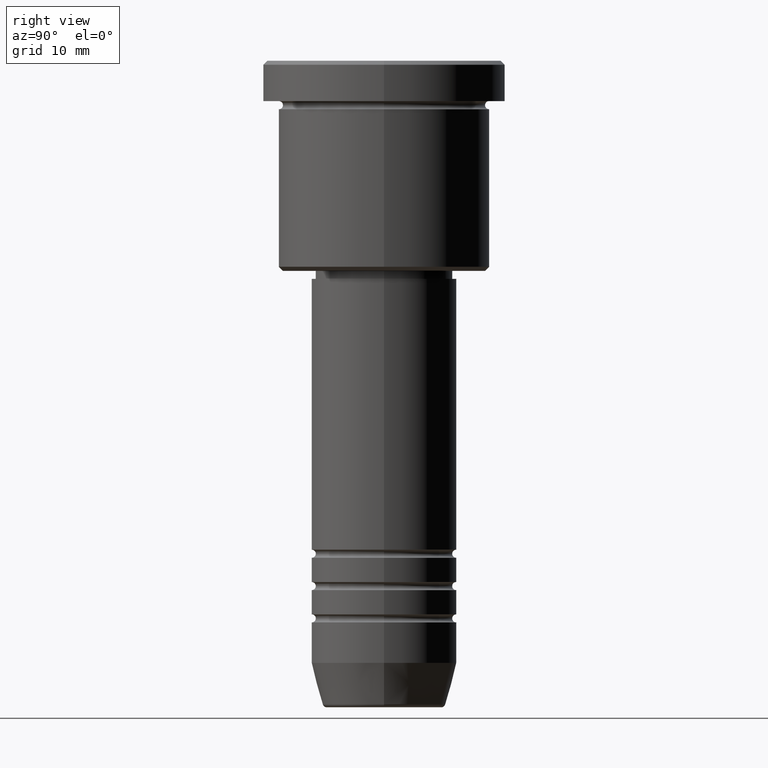
[diagram: clean part render]
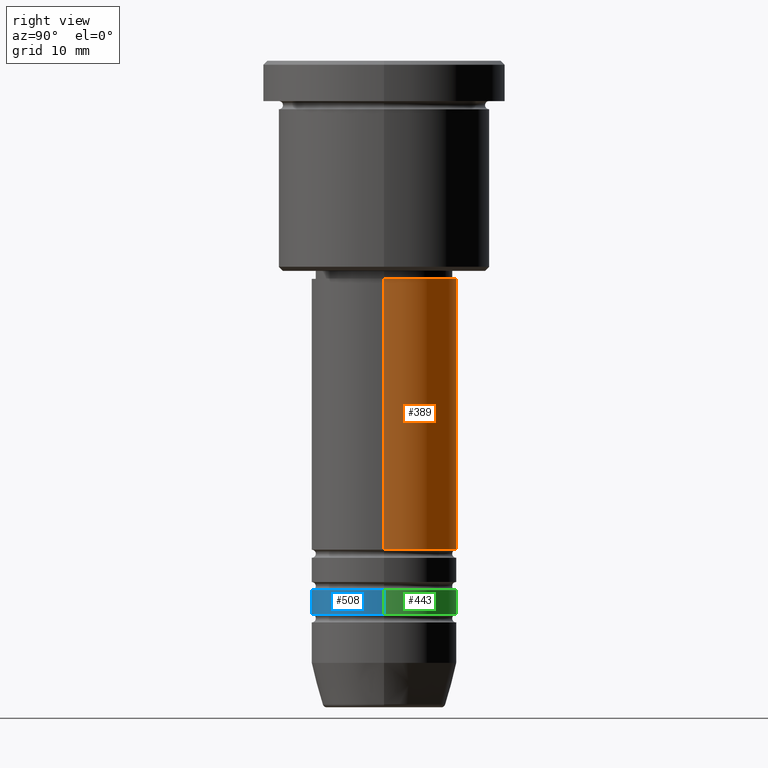
[diagram: same view with three faces highlighted in distinct colors, each labeled with its STEP entity id]
A machine part, right view with three faces highlighted in distinct colors.
Their STEP definitions:

[orange] entity #389 — the highlighted cylindrical surface (partial cylindrical patch) has radius 9 mm, axis along (-0, -0, 1).
#19 = DIRECTION ( 'NONE',  ( -0.000000000000000000, -0.000000000000000000, 1.000000000000000000 ) ) ;
#48 = EDGE_LOOP ( 'NONE', ( #188, #489, #1128, #1101 ) ) ;
#78 = EDGE_CURVE ( 'NONE', #132, #1081, #145, .T. ) ;
#92 = DIRECTION ( 'NONE',  ( -0.000000000000000000, -0.000000000000000000, 1.000000000000000000 ) ) ;
#110 = CARTESIAN_POINT ( 'NONE',  ( 0.000000000000000000, 0.000000000000000000, -27.00000000000000355 ) ) ;
#132 = VERTEX_POINT ( 'NONE', #198 ) ;
#145 = LINE ( 'NONE', #228, #904 ) ;
#152 = EDGE_CURVE ( 'NONE', #429, #1081, #1012, .T. ) ;
#183 = CARTESIAN_POINT ( 'NONE',  ( 0.000000000000000000, 0.000000000000000000, 0.000000000000000000 ) ) ;
#188 = ORIENTED_EDGE ( 'NONE', *, *, #1107, .T. ) ;
#198 = CARTESIAN_POINT ( 'NONE',  ( -9.000000000000001776, 1.102182119232617911E-15, -60.50000000000000711 ) ) ;
#206 = DIRECTION ( 'NONE',  ( 1.000000000000000000, 0.000000000000000000, 0.000000000000000000 ) ) ;
#214 = AXIS2_PLACEMENT_3D ( 'NONE', #1105, #578, #206 ) ;
#228 = CARTESIAN_POINT ( 'NONE',  ( -9.000000000000000000, 1.102182119232617714E-15, 0.000000000000000000 ) ) ;
#241 = FACE_OUTER_BOUND ( 'NONE', #48, .T. ) ;
#389 = ADVANCED_FACE ( 'NONE', ( #241 ), #1163, .T. ) ;
#429 = VERTEX_POINT ( 'NONE', #894 ) ;
#471 = AXIS2_PLACEMENT_3D ( 'NONE', #183, #1080, #734 ) ;
#489 = ORIENTED_EDGE ( 'NONE', *, *, #78, .T. ) ;
#561 = CARTESIAN_POINT ( 'NONE',  ( 9.000000000000000000, 0.000000000000000000, 0.000000000000000000 ) ) ;
#578 = DIRECTION ( 'NONE',  ( -0.000000000000000000, -0.000000000000000000, 1.000000000000000000 ) ) ;
#605 = CARTESIAN_POINT ( 'NONE',  ( 9.000000000000001776, 0.000000000000000000, -60.50000000000000711 ) ) ;
#644 = LINE ( 'NONE', #561, #1108 ) ;
#647 = EDGE_CURVE ( 'NONE', #1161, #429, #644, .T. ) ;
#669 = AXIS2_PLACEMENT_3D ( 'NONE', #110, #855, #1023 ) ;
#734 = DIRECTION ( 'NONE',  ( 1.000000000000000000, 0.000000000000000000, 0.000000000000000000 ) ) ;
#837 = CIRCLE ( 'NONE', #214, 9.000000000000001776 ) ;
#855 = DIRECTION ( 'NONE',  ( -0.000000000000000000, -0.000000000000000000, 1.000000000000000000 ) ) ;
#894 = CARTESIAN_POINT ( 'NONE',  ( 8.999999999999998224, 0.000000000000000000, -27.00000000000000355 ) ) ;
#904 = VECTOR ( 'NONE', #19, 1000.000000000000000 ) ;
#1012 = CIRCLE ( 'NONE', #669, 8.999999999999998224 ) ;
#1023 = DIRECTION ( 'NONE',  ( 1.000000000000000000, 0.000000000000000000, 0.000000000000000000 ) ) ;
#1027 = CARTESIAN_POINT ( 'NONE',  ( -8.999999999999998224, 1.102182119232617714E-15, -27.00000000000000355 ) ) ;
#1080 = DIRECTION ( 'NONE',  ( -0.000000000000000000, -0.000000000000000000, 1.000000000000000000 ) ) ;
#1081 = VERTEX_POINT ( 'NONE', #1027 ) ;
#1101 = ORIENTED_EDGE ( 'NONE', *, *, #647, .F. ) ;
#1105 = CARTESIAN_POINT ( 'NONE',  ( 0.000000000000000000, 0.000000000000000000, -60.50000000000000711 ) ) ;
#1107 = EDGE_CURVE ( 'NONE', #1161, #132, #837, .T. ) ;
#1108 = VECTOR ( 'NONE', #92, 1000.000000000000000 ) ;
#1128 = ORIENTED_EDGE ( 'NONE', *, *, #152, .F. ) ;
#1161 = VERTEX_POINT ( 'NONE', #605 ) ;
#1163 = CYLINDRICAL_SURFACE ( 'NONE', #471, 9.000000000000000000 ) ;

[blue] entity #508 — the highlighted cylindrical surface (partial cylindrical patch) has radius 9 mm, axis along (-0, -0, 1).
#33 = DIRECTION ( 'NONE',  ( 1.000000000000000000, 0.000000000000000000, 0.000000000000000000 ) ) ;
#60 = CARTESIAN_POINT ( 'NONE',  ( 0.000000000000000000, 0.000000000000000000, 0.000000000000000000 ) ) ;
#107 = EDGE_CURVE ( 'NONE', #661, #266, #231, .T. ) ;
#115 = CARTESIAN_POINT ( 'NONE',  ( 0.000000000000000000, 0.000000000000000000, -68.50000000000000000 ) ) ;
#154 = DIRECTION ( 'NONE',  ( 1.000000000000000000, 0.000000000000000000, 0.000000000000000000 ) ) ;
#165 = VERTEX_POINT ( 'NONE', #939 ) ;
#190 = AXIS2_PLACEMENT_3D ( 'NONE', #60, #230, #154 ) ;
#199 = CIRCLE ( 'NONE', #530, 9.000000000000001776 ) ;
#224 = EDGE_CURVE ( 'NONE', #1077, #266, #332, .T. ) ;
#230 = DIRECTION ( 'NONE',  ( -0.000000000000000000, -0.000000000000000000, 1.000000000000000000 ) ) ;
#231 = CIRCLE ( 'NONE', #736, 9.000000000000000000 ) ;
#266 = VERTEX_POINT ( 'NONE', #682 ) ;
#287 = CARTESIAN_POINT ( 'NONE',  ( 0.000000000000000000, 0.000000000000000000, -65.50000000000000000 ) ) ;
#303 = DIRECTION ( 'NONE',  ( -0.000000000000000000, -0.000000000000000000, 1.000000000000000000 ) ) ;
#332 = LINE ( 'NONE', #969, #1110 ) ;
#355 = EDGE_CURVE ( 'NONE', #165, #661, #740, .T. ) ;
#444 = EDGE_LOOP ( 'NONE', ( #545, #1084, #1171, #973 ) ) ;
#486 = DIRECTION ( 'NONE',  ( -0.000000000000000000, -0.000000000000000000, 1.000000000000000000 ) ) ;
#508 = ADVANCED_FACE ( 'NONE', ( #972 ), #1150, .T. ) ;
#530 = AXIS2_PLACEMENT_3D ( 'NONE', #115, #486, #851 ) ;
#545 = ORIENTED_EDGE ( 'NONE', *, *, #355, .F. ) ;
#661 = VERTEX_POINT ( 'NONE', #730 ) ;
#682 = CARTESIAN_POINT ( 'NONE',  ( 9.000000000000000000, 0.000000000000000000, -65.50000000000000000 ) ) ;
#730 = CARTESIAN_POINT ( 'NONE',  ( -9.000000000000000000, 1.102182119232617714E-15, -65.50000000000000000 ) ) ;
#736 = AXIS2_PLACEMENT_3D ( 'NONE', #287, #303, #33 ) ;
#740 = LINE ( 'NONE', #1098, #1030 ) ;
#804 = DIRECTION ( 'NONE',  ( -0.000000000000000000, -0.000000000000000000, 1.000000000000000000 ) ) ;
#851 = DIRECTION ( 'NONE',  ( 1.000000000000000000, 0.000000000000000000, 0.000000000000000000 ) ) ;
#898 = DIRECTION ( 'NONE',  ( -0.000000000000000000, -0.000000000000000000, 1.000000000000000000 ) ) ;
#931 = CARTESIAN_POINT ( 'NONE',  ( 9.000000000000001776, 0.000000000000000000, -68.50000000000000000 ) ) ;
#939 = CARTESIAN_POINT ( 'NONE',  ( -9.000000000000001776, 1.102182119232617911E-15, -68.50000000000000000 ) ) ;
#969 = CARTESIAN_POINT ( 'NONE',  ( 9.000000000000001776, 0.000000000000000000, 0.000000000000000000 ) ) ;
#972 = FACE_OUTER_BOUND ( 'NONE', #444, .T. ) ;
#973 = ORIENTED_EDGE ( 'NONE', *, *, #107, .F. ) ;
#1030 = VECTOR ( 'NONE', #898, 1000.000000000000000 ) ;
#1077 = VERTEX_POINT ( 'NONE', #931 ) ;
#1084 = ORIENTED_EDGE ( 'NONE', *, *, #1118, .T. ) ;
#1098 = CARTESIAN_POINT ( 'NONE',  ( -9.000000000000001776, 1.102182119232617911E-15, 0.000000000000000000 ) ) ;
#1110 = VECTOR ( 'NONE', #804, 1000.000000000000000 ) ;
#1118 = EDGE_CURVE ( 'NONE', #165, #1077, #199, .T. ) ;
#1150 = CYLINDRICAL_SURFACE ( 'NONE', #190, 9.000000000000001776 ) ;
#1171 = ORIENTED_EDGE ( 'NONE', *, *, #224, .T. ) ;

[green] entity #443 — the highlighted cylindrical surface (partial cylindrical patch) has radius 9 mm, axis along (-0, -0, 1).
#40 = EDGE_CURVE ( 'NONE', #1077, #165, #597, .T. ) ;
#164 = DIRECTION ( 'NONE',  ( 1.000000000000000000, 0.000000000000000000, 0.000000000000000000 ) ) ;
#165 = VERTEX_POINT ( 'NONE', #939 ) ;
#224 = EDGE_CURVE ( 'NONE', #1077, #266, #332, .T. ) ;
#225 = CARTESIAN_POINT ( 'NONE',  ( 0.000000000000000000, 0.000000000000000000, -65.50000000000000000 ) ) ;
#266 = VERTEX_POINT ( 'NONE', #682 ) ;
#315 = ORIENTED_EDGE ( 'NONE', *, *, #224, .F. ) ;
#318 = DIRECTION ( 'NONE',  ( 1.000000000000000000, 0.000000000000000000, 0.000000000000000000 ) ) ;
#332 = LINE ( 'NONE', #969, #1110 ) ;
#349 = CARTESIAN_POINT ( 'NONE',  ( 0.000000000000000000, 0.000000000000000000, 0.000000000000000000 ) ) ;
#355 = EDGE_CURVE ( 'NONE', #165, #661, #740, .T. ) ;
#368 = DIRECTION ( 'NONE',  ( 1.000000000000000000, 0.000000000000000000, 0.000000000000000000 ) ) ;
#419 = ORIENTED_EDGE ( 'NONE', *, *, #40, .T. ) ;
#443 = ADVANCED_FACE ( 'NONE', ( #447 ), #1169, .T. ) ;
#447 = FACE_OUTER_BOUND ( 'NONE', #907, .T. ) ;
#498 = DIRECTION ( 'NONE',  ( -0.000000000000000000, -0.000000000000000000, 1.000000000000000000 ) ) ;
#506 = CIRCLE ( 'NONE', #698, 9.000000000000000000 ) ;
#546 = DIRECTION ( 'NONE',  ( -0.000000000000000000, -0.000000000000000000, 1.000000000000000000 ) ) ;
#597 = CIRCLE ( 'NONE', #1173, 9.000000000000001776 ) ;
#661 = VERTEX_POINT ( 'NONE', #730 ) ;
#682 = CARTESIAN_POINT ( 'NONE',  ( 9.000000000000000000, 0.000000000000000000, -65.50000000000000000 ) ) ;
#698 = AXIS2_PLACEMENT_3D ( 'NONE', #225, #498, #318 ) ;
#730 = CARTESIAN_POINT ( 'NONE',  ( -9.000000000000000000, 1.102182119232617714E-15, -65.50000000000000000 ) ) ;
#740 = LINE ( 'NONE', #1098, #1030 ) ;
#771 = ORIENTED_EDGE ( 'NONE', *, *, #355, .T. ) ;
#804 = DIRECTION ( 'NONE',  ( -0.000000000000000000, -0.000000000000000000, 1.000000000000000000 ) ) ;
#806 = ORIENTED_EDGE ( 'NONE', *, *, #928, .F. ) ;
#898 = DIRECTION ( 'NONE',  ( -0.000000000000000000, -0.000000000000000000, 1.000000000000000000 ) ) ;
#907 = EDGE_LOOP ( 'NONE', ( #419, #771, #806, #315 ) ) ;
#928 = EDGE_CURVE ( 'NONE', #266, #661, #506, .T. ) ;
#931 = CARTESIAN_POINT ( 'NONE',  ( 9.000000000000001776, 0.000000000000000000, -68.50000000000000000 ) ) ;
#939 = CARTESIAN_POINT ( 'NONE',  ( -9.000000000000001776, 1.102182119232617911E-15, -68.50000000000000000 ) ) ;
#969 = CARTESIAN_POINT ( 'NONE',  ( 9.000000000000001776, 0.000000000000000000, 0.000000000000000000 ) ) ;
#1030 = VECTOR ( 'NONE', #898, 1000.000000000000000 ) ;
#1077 = VERTEX_POINT ( 'NONE', #931 ) ;
#1085 = DIRECTION ( 'NONE',  ( -0.000000000000000000, -0.000000000000000000, 1.000000000000000000 ) ) ;
#1098 = CARTESIAN_POINT ( 'NONE',  ( -9.000000000000001776, 1.102182119232617911E-15, 0.000000000000000000 ) ) ;
#1109 = CARTESIAN_POINT ( 'NONE',  ( 0.000000000000000000, 0.000000000000000000, -68.50000000000000000 ) ) ;
#1110 = VECTOR ( 'NONE', #804, 1000.000000000000000 ) ;
#1111 = AXIS2_PLACEMENT_3D ( 'NONE', #349, #1085, #164 ) ;
#1169 = CYLINDRICAL_SURFACE ( 'NONE', #1111, 9.000000000000001776 ) ;
#1173 = AXIS2_PLACEMENT_3D ( 'NONE', #1109, #546, #368 ) ;